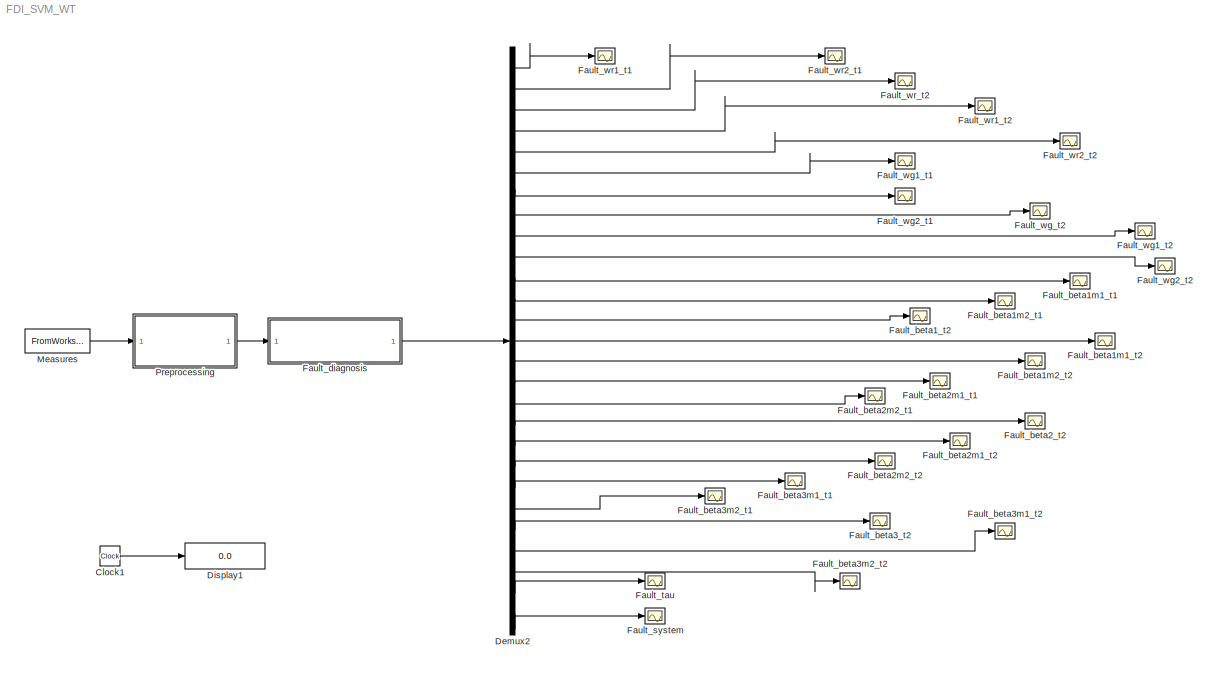
MODEL FDI_SVM_WT
KIND model
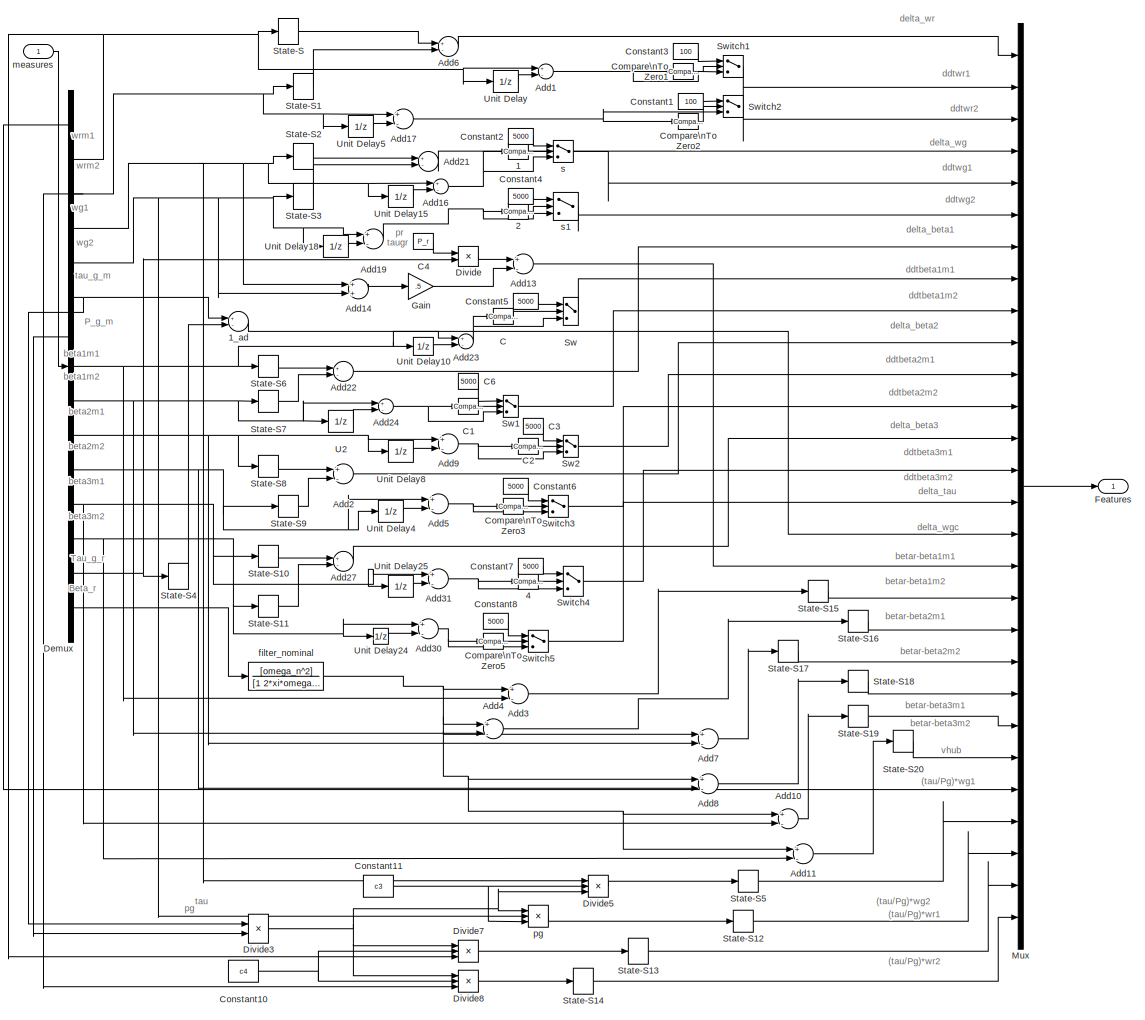
[diagram:  Preprocessing - part 1/1, most of the canvas]
BLOCK [SubSystem]  Preprocessing
  Ports = [1, 1]
  RequestExecContextInheritance = off
  SID = 1
BLOCK [Reference]  Preprocessing/1  REF=simulink/Logic and Bit\nOperations/Compare\nTo Zero
  OutDataTypeStr = uint8
  Ports = [1, 1]
  SID = 3
  SourceBlock = simulink/Logic and Bit\nOperations/Compare\nTo Zero
  SourceProductBaseCode = SL
  SourceProductName = Simulink
  SourceType = Compare To Zero
  ZeroCross = on
  relop = ==
BLOCK [Sum]  Preprocessing/1_ad
  InputSameDT = off
  Inputs = +-
  Ports = [2, 1]
  SID = 4
  SaturateOnIntegerOverflow = off
BLOCK [Reference]  Preprocessing/2  REF=simulink/Logic and Bit\nOperations/Compare\nTo Zero
  OutDataTypeStr = uint8
  Ports = [1, 1]
  SID = 5
  SourceBlock = simulink/Logic and Bit\nOperations/Compare\nTo Zero
  SourceProductBaseCode = SL
  SourceProductName = Simulink
  SourceType = Compare To Zero
  ZeroCross = on
  relop = ==
BLOCK [Reference]  Preprocessing/4  REF=simulink/Logic and Bit\nOperations/Compare\nTo Zero
  OutDataTypeStr = uint8
  Ports = [1, 1]
  SID = 6
  SourceBlock = simulink/Logic and Bit\nOperations/Compare\nTo Zero
  SourceProductBaseCode = SL
  SourceProductName = Simulink
  SourceType = Compare To Zero
  ZeroCross = on
  relop = ==
BLOCK [Sum]  Preprocessing/Add1
  InputSameDT = off
  Inputs = +-
  Ports = [2, 1]
  SID = 7
  SaturateOnIntegerOverflow = off
BLOCK [Sum]  Preprocessing/Add10
  InputSameDT = off
  Inputs = +-
  Ports = [2, 1]
  SID = 8
  SaturateOnIntegerOverflow = off
BLOCK [Sum]  Preprocessing/Add11
  InputSameDT = off
  Inputs = +-
  Ports = [2, 1]
  SID = 9
  SaturateOnIntegerOverflow = off
BLOCK [Sum]  Preprocessing/Add13
  InputSameDT = off
  Inputs = +-
  Ports = [2, 1]
  SID = 10
  SaturateOnIntegerOverflow = off
BLOCK [Sum]  Preprocessing/Add14
  InputSameDT = off
  Ports = [2, 1]
  SID = 11
  SaturateOnIntegerOverflow = off
BLOCK [Sum]  Preprocessing/Add16
  InputSameDT = off
  Inputs = +-
  Ports = [2, 1]
  SID = 12
  SaturateOnIntegerOverflow = off
BLOCK [Sum]  Preprocessing/Add17
  InputSameDT = off
  Inputs = +-
  Ports = [2, 1]
  SID = 13
  SaturateOnIntegerOverflow = off
BLOCK [Sum]  Preprocessing/Add19
  InputSameDT = off
  Inputs = +-
  Ports = [2, 1]
  SID = 14
  SaturateOnIntegerOverflow = off
BLOCK [Sum]  Preprocessing/Add2
  InputSameDT = off
  Inputs = +-
  Ports = [2, 1]
  SID = 15
  SaturateOnIntegerOverflow = off
BLOCK [Sum]  Preprocessing/Add21
  InputSameDT = off
  Inputs = +-
  Ports = [2, 1]
  SID = 16
  SaturateOnIntegerOverflow = off
BLOCK [Sum]  Preprocessing/Add22
  InputSameDT = off
  Inputs = +-
  Ports = [2, 1]
  SID = 17
  SaturateOnIntegerOverflow = off
BLOCK [Sum]  Preprocessing/Add23
  InputSameDT = off
  Inputs = +-
  Ports = [2, 1]
  SID = 18
  SaturateOnIntegerOverflow = off
BLOCK [Sum]  Preprocessing/Add24
  InputSameDT = off
  Inputs = +-
  Ports = [2, 1]
  SID = 19
  SaturateOnIntegerOverflow = off
BLOCK [Sum]  Preprocessing/Add27
  InputSameDT = off
  Inputs = +-
  Ports = [2, 1]
  SID = 20
  SaturateOnIntegerOverflow = off
BLOCK [Sum]  Preprocessing/Add3
  InputSameDT = off
  Inputs = +-
  Ports = [2, 1]
  SID = 21
  SaturateOnIntegerOverflow = off
BLOCK [Sum]  Preprocessing/Add30
  InputSameDT = off
  Inputs = +-
  Ports = [2, 1]
  SID = 22
  SaturateOnIntegerOverflow = off
BLOCK [Sum]  Preprocessing/Add31
  InputSameDT = off
  Inputs = +-
  Ports = [2, 1]
  SID = 23
  SaturateOnIntegerOverflow = off
BLOCK [Sum]  Preprocessing/Add4
  InputSameDT = off
  Inputs = +-
  Ports = [2, 1]
  SID = 24
  SaturateOnIntegerOverflow = off
BLOCK [Sum]  Preprocessing/Add5
  InputSameDT = off
  Inputs = +-
  Ports = [2, 1]
  SID = 25
  SaturateOnIntegerOverflow = off
BLOCK [Sum]  Preprocessing/Add6
  InputSameDT = off
  Inputs = +-
  Ports = [2, 1]
  SID = 26
  SaturateOnIntegerOverflow = off
BLOCK [Sum]  Preprocessing/Add7
  InputSameDT = off
  Inputs = +-
  Ports = [2, 1]
  SID = 27
  SaturateOnIntegerOverflow = off
BLOCK [Sum]  Preprocessing/Add8
  InputSameDT = off
  Inputs = +-
  Ports = [2, 1]
  SID = 28
  SaturateOnIntegerOverflow = off
BLOCK [Sum]  Preprocessing/Add9
  InputSameDT = off
  Inputs = +-
  Ports = [2, 1]
  SID = 29
  SaturateOnIntegerOverflow = off
BLOCK [Reference]  Preprocessing/C  REF=simulink/Logic and Bit\nOperations/Compare\nTo Zero
  OutDataTypeStr = uint8
  Ports = [1, 1]
  SID = 30
  SourceBlock = simulink/Logic and Bit\nOperations/Compare\nTo Zero
  SourceProductBaseCode = SL
  SourceProductName = Simulink
  SourceType = Compare To Zero
  ZeroCross = on
  relop = ==
BLOCK [Reference]  Preprocessing/C1  REF=simulink/Logic and Bit\nOperations/Compare\nTo Zero
  OutDataTypeStr = uint8
  Ports = [1, 1]
  SID = 31
  SourceBlock = simulink/Logic and Bit\nOperations/Compare\nTo Zero
  SourceProductBaseCode = SL
  SourceProductName = Simulink
  SourceType = Compare To Zero
  ZeroCross = on
  relop = ==
BLOCK [Reference]  Preprocessing/C2  REF=simulink/Logic and Bit\nOperations/Compare\nTo Zero
  OutDataTypeStr = uint8
  Ports = [1, 1]
  SID = 32
  SourceBlock = simulink/Logic and Bit\nOperations/Compare\nTo Zero
  SourceProductBaseCode = SL
  SourceProductName = Simulink
  SourceType = Compare To Zero
  ZeroCross = on
  relop = ==
BLOCK [Constant]  Preprocessing/C3
  SID = 33
  Value = 5000
BLOCK [Constant]  Preprocessing/C4
  SID = 34
  Value = P_r
BLOCK [Constant]  Preprocessing/C6
  SID = 35
  Value = 5000
BLOCK [Reference]  Preprocessing/Compare\nTo Zero1  REF=simulink/Logic and Bit\nOperations/Compare\nTo Zero
  OutDataTypeStr = uint8
  Ports = [1, 1]
  SID = 36
  SourceBlock = simulink/Logic and Bit\nOperations/Compare\nTo Zero
  SourceProductBaseCode = SL
  SourceProductName = Simulink
  SourceType = Compare To Zero
  ZeroCross = on
  relop = ==
BLOCK [Reference]  Preprocessing/Compare\nTo Zero2  REF=simulink/Logic and Bit\nOperations/Compare\nTo Zero
  OutDataTypeStr = uint8
  Ports = [1, 1]
  SID = 37
  SourceBlock = simulink/Logic and Bit\nOperations/Compare\nTo Zero
  SourceProductBaseCode = SL
  SourceProductName = Simulink
  SourceType = Compare To Zero
  ZeroCross = on
  relop = ==
BLOCK [Reference]  Preprocessing/Compare\nTo Zero3  REF=simulink/Logic and Bit\nOperations/Compare\nTo Zero
  OutDataTypeStr = uint8
  Ports = [1, 1]
  SID = 38
  SourceBlock = simulink/Logic and Bit\nOperations/Compare\nTo Zero
  SourceProductBaseCode = SL
  SourceProductName = Simulink
  SourceType = Compare To Zero
  ZeroCross = on
  relop = ==
BLOCK [Reference]  Preprocessing/Compare\nTo Zero5  REF=simulink/Logic and Bit\nOperations/Compare\nTo Zero
  OutDataTypeStr = uint8
  Ports = [1, 1]
  SID = 39
  SourceBlock = simulink/Logic and Bit\nOperations/Compare\nTo Zero
  SourceProductBaseCode = SL
  SourceProductName = Simulink
  SourceType = Compare To Zero
  ZeroCross = on
  relop = ==
BLOCK [Constant]  Preprocessing/Constant1
  SID = 40
  Value = 100
BLOCK [Constant]  Preprocessing/Constant10
  SID = 41
  Value = c4
BLOCK [Constant]  Preprocessing/Constant11
  SID = 42
  Value = c3
BLOCK [Constant]  Preprocessing/Constant2
  SID = 43
  Value = 5000
BLOCK [Constant]  Preprocessing/Constant3
  SID = 44
  Value = 100
BLOCK [Constant]  Preprocessing/Constant4
  SID = 45
  Value = 5000
BLOCK [Constant]  Preprocessing/Constant5
  SID = 46
  Value = 5000
BLOCK [Constant]  Preprocessing/Constant6
  SID = 47
  Value = 5000
BLOCK [Constant]  Preprocessing/Constant7
  SID = 48
  Value = 5000
BLOCK [Constant]  Preprocessing/Constant8
  SID = 49
  Value = 5000
BLOCK [Demux]  Preprocessing/Demux
  DisplayOption = bar
  Outputs = 15
  Ports = [1, 15]
  SID = 50
BLOCK [Product]  Preprocessing/Divide
  InputSameDT = off
  Inputs = */
  Ports = [2, 1]
  RndMeth = Floor
  SID = 51
  SaturateOnIntegerOverflow = off
BLOCK [Product]  Preprocessing/Divide3
  InputSameDT = off
  Inputs = */
  Ports = [2, 1]
  RndMeth = Floor
  SID = 52
  SaturateOnIntegerOverflow = off
BLOCK [Product]  Preprocessing/Divide5
  InputSameDT = off
  Inputs = ***
  Ports = [3, 1]
  RndMeth = Floor
  SID = 53
  SaturateOnIntegerOverflow = off
BLOCK [Product]  Preprocessing/Divide7
  InputSameDT = off
  Inputs = ***
  Ports = [3, 1]
  RndMeth = Floor
  SID = 54
  SaturateOnIntegerOverflow = off
BLOCK [Product]  Preprocessing/Divide8
  InputSameDT = off
  Inputs = ***
  Ports = [3, 1]
  RndMeth = Floor
  SID = 55
  SaturateOnIntegerOverflow = off
BLOCK [Outport]  Preprocessing/Features
  IconDisplay = Port number
  SID = 101
BLOCK [Gain]  Preprocessing/Gain
  Gain = .5
  SID = 56
  SaturateOnIntegerOverflow = off
BLOCK [Mux]  Preprocessing/Mux
  DisplayOption = bar
  Inputs = 28
  Ports = [28, 1]
  SID = 57
BLOCK [StateSpace]  Preprocessing/State-S
  A = -1/T1
  B = 1/T1
  D = 0
  InitialCondition = wr0
  Ports = [1, 1]
  SID = 58
BLOCK [StateSpace]  Preprocessing/State-S1
  A = -1/T1
  B = 1/T1
  D = 0
  InitialCondition = wr0
  Ports = [1, 1]
  SID = 59
BLOCK [StateSpace]  Preprocessing/State-S10
  A = -1/T3
  B = 1/T3
  D = 0
  InitialCondition = 0
  Ports = [1, 1]
  SID = 60
BLOCK [StateSpace]  Preprocessing/State-S11
  A = -1/T3
  B = 1/T3
  D = 0
  InitialCondition = 0
  Ports = [1, 1]
  SID = 61
BLOCK [StateSpace]  Preprocessing/State-S12
  A = -1/T3
  B = 1/T3
  D = 0
  InitialCondition = 0
  Ports = [1, 1]
  SID = 62
BLOCK [StateSpace]  Preprocessing/State-S13
  A = -1/T1
  B = 1/T1
  D = 0
  InitialCondition = 0
  Ports = [1, 1]
  SID = 63
BLOCK [StateSpace]  Preprocessing/State-S14
  A = -1/T1
  B = 1/T1
  D = 0
  InitialCondition = 0
  Ports = [1, 1]
  SID = 64
BLOCK [StateSpace]  Preprocessing/State-S15
  A = -1/T4
  B = 1/T4
  D = 0
  InitialCondition = 0
  Ports = [1, 1]
  SID = 65
BLOCK [StateSpace]  Preprocessing/State-S16
  A = -1/T4
  B = 1/T4
  D = 0
  InitialCondition = 0
  Ports = [1, 1]
  SID = 66
BLOCK [StateSpace]  Preprocessing/State-S17
  A = -1/T4
  B = 1/T4
  D = 0
  InitialCondition = 0
  Ports = [1, 1]
  SID = 67
BLOCK [StateSpace]  Preprocessing/State-S18
  A = -1/T4
  B = 1/T4
  D = 0
  InitialCondition = 0
  Ports = [1, 1]
  SID = 68
BLOCK [StateSpace]  Preprocessing/State-S19
  A = -1/T4
  B = 1/T4
  D = 0
  InitialCondition = 0
  Ports = [1, 1]
  SID = 69
BLOCK [StateSpace]  Preprocessing/State-S2
  A = -1/T2
  B = 1/T2
  D = 0
  InitialCondition = wg0
  Ports = [1, 1]
  SID = 70
BLOCK [StateSpace]  Preprocessing/State-S20
  A = -1/T4
  B = 1/T4
  D = 0
  InitialCondition = 0
  Ports = [1, 1]
  SID = 71
BLOCK [StateSpace]  Preprocessing/State-S3
  A = -1/T2
  B = 1/T2
  D = 0
  InitialCondition = wg0
  Ports = [1, 1]
  SID = 72
BLOCK [StateSpace]  Preprocessing/State-S4
  A = -1/T2
  B = 1/T2
  D = 0
  InitialCondition = 0
  Ports = [1, 1]
  SID = 73
BLOCK [StateSpace]  Preprocessing/State-S5
  A = -1/T3
  B = 1/T3
  D = 0
  InitialCondition = 0
  Ports = [1, 1]
  SID = 74
BLOCK [StateSpace]  Preprocessing/State-S6
  A = -1/T3
  B = 1/T3
  D = 0
  InitialCondition = 0
  Ports = [1, 1]
  SID = 75
BLOCK [StateSpace]  Preprocessing/State-S7
  A = -1/T3
  B = 1/T3
  D = 0
  InitialCondition = 0
  Ports = [1, 1]
  SID = 76
BLOCK [StateSpace]  Preprocessing/State-S8
  A = -1/T3
  B = 1/T3
  D = 0
  InitialCondition = 0
  Ports = [1, 1]
  SID = 77
BLOCK [StateSpace]  Preprocessing/State-S9
  A = -1/T3
  B = 1/T3
  D = 0
  InitialCondition = 0
  Ports = [1, 1]
  SID = 78
BLOCK [Switch]  Preprocessing/Sw
  InputSameDT = off
  SID = 79
  SaturateOnIntegerOverflow = off
  Threshold = 0.5
BLOCK [Switch]  Preprocessing/Sw1
  InputSameDT = off
  SID = 80
  SaturateOnIntegerOverflow = off
  Threshold = 0.5
BLOCK [Switch]  Preprocessing/Sw2
  InputSameDT = off
  SID = 81
  SaturateOnIntegerOverflow = off
  Threshold = 0.5
BLOCK [Switch]  Preprocessing/Switch1
  InputSameDT = off
  SID = 82
  SaturateOnIntegerOverflow = off
  Threshold = 0.5
BLOCK [Switch]  Preprocessing/Switch2
  InputSameDT = off
  SID = 83
  SaturateOnIntegerOverflow = off
  Threshold = 0.5
BLOCK [Switch]  Preprocessing/Switch3
  InputSameDT = off
  SID = 84
  SaturateOnIntegerOverflow = off
  Threshold = 0.5
BLOCK [Switch]  Preprocessing/Switch4
  InputSameDT = off
  SID = 85
  SaturateOnIntegerOverflow = off
  Threshold = 0.5
BLOCK [Switch]  Preprocessing/Switch5
  InputSameDT = off
  SID = 86
  SaturateOnIntegerOverflow = off
  Threshold = 0.5
BLOCK [UnitDelay]  Preprocessing/U2
  HasFrameUpgradeWarning = on
  SID = 87
  SampleTime = Ts
BLOCK [UnitDelay]  Preprocessing/Unit Delay
  HasFrameUpgradeWarning = on
  SID = 88
  SampleTime = Ts
BLOCK [UnitDelay]  Preprocessing/Unit Delay10
  HasFrameUpgradeWarning = on
  SID = 89
  SampleTime = Ts
BLOCK [UnitDelay]  Preprocessing/Unit Delay15
  HasFrameUpgradeWarning = on
  InitialCondition = 100
  SID = 90
  SampleTime = Ts
BLOCK [UnitDelay]  Preprocessing/Unit Delay18
  HasFrameUpgradeWarning = on
  InitialCondition = 100
  SID = 91
  SampleTime = Ts
BLOCK [UnitDelay]  Preprocessing/Unit Delay24
  HasFrameUpgradeWarning = on
  SID = 92
  SampleTime = Ts
BLOCK [UnitDelay]  Preprocessing/Unit Delay25
  HasFrameUpgradeWarning = on
  SID = 93
  SampleTime = Ts
BLOCK [UnitDelay]  Preprocessing/Unit Delay4
  HasFrameUpgradeWarning = on
  SID = 94
  SampleTime = Ts
BLOCK [UnitDelay]  Preprocessing/Unit Delay5
  HasFrameUpgradeWarning = on
  SID = 95
  SampleTime = Ts
BLOCK [UnitDelay]  Preprocessing/Unit Delay8
  HasFrameUpgradeWarning = on
  SID = 96
  SampleTime = Ts
BLOCK [TransferFcn]  Preprocessing/filter_nominal
  Denominator = [1 2*xi*omega_n omega_n^2]
  Numerator = [omega_n^2]
  SID = 97
BLOCK [Inport]  Preprocessing/measures
  IconDisplay = Port number
  SID = 2
BLOCK [Product]  Preprocessing/pg
  InputSameDT = off
  Inputs = ***
  Ports = [3, 1]
  RndMeth = Floor
  SID = 98
  SaturateOnIntegerOverflow = off
BLOCK [Switch]  Preprocessing/s
  InputSameDT = off
  SID = 99
  SaturateOnIntegerOverflow = off
  Threshold = 0.5
BLOCK [Switch]  Preprocessing/s1
  InputSameDT = off
  SID = 100
  SaturateOnIntegerOverflow = off
  Threshold = 0.5
BLOCK [Clock] Clock1
  SID = 102
BLOCK [Demux] Demux2
  DisplayOption = bar
  Outputs = 27
  Ports = [1, 27]
  SID = 103
BLOCK [Display] Display1
  Decimation = 1
  Ports = [1]
  SID = 104
BLOCK [Scope] Fault_beta1_t2
  Floating = off
  NumInputPorts = 1
  Ports = [1]
  SID = 105
  ScopeSpecificationString = C++SS(StrPVP('Location','[159, 184, 483, 423]'),StrPVP('Open','off'),StrPVP('ZoomMode','xonly'),MxPVP('AxesTitles',54,'struct(''axes1'',''%<SignalLabel>'')'),MxPVP('ScopeGraphics',57,'struct(''FigureColor'',''[0.5 0.5 0.5]'',''AxesColor'',''[0 0 0]'',''AxesTickColor'',''[1 1 1]'',''LineColors'',''[1 1 0;1 0 1;0 1 1;1 0 0;0 1 0;0 0 1]'',''LineStyles'',''-|-|-|-|-|-'',''LineWidths'',''[0.5 0.5 0.5 0...<+311ch>
BLOCK [Scope] Fault_beta1m1_t1
  Floating = off
  NumInputPorts = 1
  Ports = [1]
  SID = 106
  ScopeSpecificationString = C++SS(StrPVP('Location','[280, 222, 604, 461]'),StrPVP('Open','off'),StrPVP('ZoomMode','xonly'),MxPVP('AxesTitles',54,'struct(''axes1'',''%<SignalLabel>'')'),MxPVP('ScopeGraphics',57,'struct(''FigureColor'',''[0.5 0.5 0.5]'',''AxesColor'',''[0 0 0]'',''AxesTickColor'',''[1 1 1]'',''LineColors'',''[1 1 0;1 0 1;0 1 1;1 0 0;0 1 0;0 0 1]'',''LineStyles'',''-|-|-|-|-|-'',''LineWidths'',''[0.5 0.5 0.5 0...<+311ch>
BLOCK [Scope] Fault_beta1m1_t2
  Floating = off
  NumInputPorts = 1
  Ports = [1]
  SID = 107
  ScopeSpecificationString = C++SS(StrPVP('Location','[502, 361, 826, 600]'),StrPVP('Open','off'),MxPVP('AxesTitles',54,'struct(''axes1'',''%<SignalLabel>'')'),MxPVP('ScopeGraphics',57,'struct(''FigureColor'',''[0.5 0.5 0.5]'',''AxesColor'',''[0 0 0]'',''AxesTickColor'',''[1 1 1]'',''LineColors'',''[1 1 0;1 0 1;0 1 1;1 0 0;0 1 0;0 0 1]'',''LineStyles'',''-|-|-|-|-|-'',''LineWidths'',''[0.5 0.5 0.5 0.5 0.5 0.5]'',''MarkerStyle...<+284ch>
BLOCK [Scope] Fault_beta1m2_t1
  Floating = off
  NumInputPorts = 1
  Ports = [1]
  SID = 108
  ScopeSpecificationString = C++SS(StrPVP('Location','[498, 410, 822, 649]'),StrPVP('Open','off'),MxPVP('AxesTitles',54,'struct(''axes1'',''%<SignalLabel>'')'),MxPVP('ScopeGraphics',57,'struct(''FigureColor'',''[0.5 0.5 0.5]'',''AxesColor'',''[0 0 0]'',''AxesTickColor'',''[1 1 1]'',''LineColors'',''[1 1 0;1 0 1;0 1 1;1 0 0;0 1 0;0 0 1]'',''LineStyles'',''-|-|-|-|-|-'',''LineWidths'',''[0.5 0.5 0.5 0.5 0.5 0.5]'',''MarkerStyle...<+284ch>  <repeated x4 — deduplicated; at blocks: Fault_beta1m2_t1, Fault_beta2m2_t1, Fault_beta3m1_t2, Fault_beta3m2_t1>
BLOCK [Scope] Fault_beta1m2_t2
  Floating = off
  NumInputPorts = 1
  Ports = [1]
  SID = 109
  ScopeSpecificationString = C++SS(StrPVP('Location','[502, 361, 826, 600]'),StrPVP('Open','off'),MxPVP('AxesTitles',54,'struct(''axes1'',''%<SignalLabel>'')'),MxPVP('ScopeGraphics',57,'struct(''FigureColor'',''[0.5 0.5 0.5]'',''AxesColor'',''[0 0 0]'',''AxesTickColor'',''[1 1 1]'',''LineColors'',''[1 1 0;1 0 1;0 1 1;1 0 0;0 1 0;0 0 1]'',''LineStyles'',''-|-|-|-|-|-'',''LineWidths'',''[0.5 0.5 0.5 0.5 0.5 0.5]'',''MarkerStyle...<+284ch>
BLOCK [Scope] Fault_beta2_t2
  Floating = off
  NumInputPorts = 1
  Ports = [1]
  SID = 110
  ScopeSpecificationString = C++SS(StrPVP('Location','[5, 52, 1285, 993]'),StrPVP('Open','off'),StrPVP('ZoomMode','xonly'),MxPVP('AxesTitles',54,'struct(''axes1'',''%<SignalLabel>'')'),MxPVP('ScopeGraphics',57,'struct(''FigureColor'',''[0.5 0.5 0.5]'',''AxesColor'',''[0 0 0]'',''AxesTickColor'',''[1 1 1]'',''LineColors'',''[1 1 0;1 0 1;0 1 1;1 0 0;0 1 0;0 0 1]'',''LineStyles'',''-|-|-|-|-|-'',''LineWidths'',''[0.5 0.5 0.5 0.5...<+309ch>
BLOCK [Scope] Fault_beta2m1_t1
  Floating = off
  NumInputPorts = 1
  Ports = [1]
  SID = 111
  ScopeSpecificationString = C++SS(StrPVP('Location','[499, 346, 823, 585]'),StrPVP('Open','off'),MxPVP('AxesTitles',54,'struct(''axes1'',''%<SignalLabel>'')'),MxPVP('ScopeGraphics',57,'struct(''FigureColor'',''[0.5 0.5 0.5]'',''AxesColor'',''[0 0 0]'',''AxesTickColor'',''[1 1 1]'',''LineColors'',''[1 1 0;1 0 1;0 1 1;1 0 0;0 1 0;0 0 1]'',''LineStyles'',''-|-|-|-|-|-'',''LineWidths'',''[0.5 0.5 0.5 0.5 0.5 0.5]'',''MarkerStyle...<+284ch>
BLOCK [Scope] Fault_beta2m1_t2
  Floating = off
  NumInputPorts = 1
  Ports = [1]
  SID = 112
  ScopeSpecificationString = C++SS(StrPVP('Location','[513, 264, 837, 503]'),StrPVP('Open','off'),StrPVP('ZoomMode','yonly'),MxPVP('AxesTitles',54,'struct(''axes1'',''%<SignalLabel>'')'),MxPVP('ScopeGraphics',57,'struct(''FigureColor'',''[0.5 0.5 0.5]'',''AxesColor'',''[0 0 0]'',''AxesTickColor'',''[1 1 1]'',''LineColors'',''[1 1 0;1 0 1;0 1 1;1 0 0;0 1 0;0 0 1]'',''LineStyles'',''-|-|-|-|-|-'',''LineWidths'',''[0.5 0.5 0.5 0...<+311ch>
BLOCK [Scope] Fault_beta2m2_t1
  Floating = off
  NumInputPorts = 1
  Ports = [1]
  SID = 113
BLOCK [Scope] Fault_beta2m2_t2
  Floating = off
  NumInputPorts = 1
  Ports = [1]
  SID = 114
  ScopeSpecificationString = C++SS(StrPVP('Location','[195, 145, 519, 388]'),StrPVP('Open','off'),StrPVP('ZoomMode','yonly'),MxPVP('AxesTitles',54,'struct(''axes1'',''%<SignalLabel>'')'),MxPVP('ScopeGraphics',57,'struct(''FigureColor'',''[0.5 0.5 0.5]'',''AxesColor'',''[0 0 0]'',''AxesTickColor'',''[1 1 1]'',''LineColors'',''[1 1 0;1 0 1;0 1 1;1 0 0;0 1 0;0 0 1]'',''LineStyles'',''-|-|-|-|-|-'',''LineWidths'',''[0.5 0.5 0.5 0...<+311ch>
BLOCK [Scope] Fault_beta3_t2
  Floating = off
  NumInputPorts = 1
  Ports = [1]
  SID = 115
  ScopeSpecificationString = C++SS(StrPVP('Location','[391, 277, 715, 516]'),StrPVP('Open','off'),StrPVP('ZoomMode','yonly'),MxPVP('AxesTitles',54,'struct(''axes1'',''%<SignalLabel>'')'),MxPVP('ScopeGraphics',57,'struct(''FigureColor'',''[0.5 0.5 0.5]'',''AxesColor'',''[0 0 0]'',''AxesTickColor'',''[1 1 1]'',''LineColors'',''[1 1 0;1 0 1;0 1 1;1 0 0;0 1 0;0 0 1]'',''LineStyles'',''-|-|-|-|-|-'',''LineWidths'',''[0.5 0.5 0.5 0...<+311ch>
BLOCK [Scope] Fault_beta3m1_t1
  Floating = off
  NumInputPorts = 1
  Ports = [1]
  SID = 116
  ScopeSpecificationString = C++SS(StrPVP('Location','[250, 151, 574, 390]'),StrPVP('Open','off'),StrPVP('ZoomMode','xonly'),MxPVP('AxesTitles',54,'struct(''axes1'',''%<SignalLabel>'')'),MxPVP('ScopeGraphics',57,'struct(''FigureColor'',''[0.5 0.5 0.5]'',''AxesColor'',''[0 0 0]'',''AxesTickColor'',''[1 1 1]'',''LineColors'',''[1 1 0;1 0 1;0 1 1;1 0 0;0 1 0;0 0 1]'',''LineStyles'',''-|-|-|-|-|-'',''LineWidths'',''[0.5 0.5 0.5 0...<+319ch>
BLOCK [Scope] Fault_beta3m1_t2
  Floating = off
  NumInputPorts = 1
  Ports = [1]
  SID = 117
BLOCK [Scope] Fault_beta3m2_t1
  Floating = off
  NumInputPorts = 1
  Ports = [1]
  SID = 118
BLOCK [Scope] Fault_beta3m2_t2
  Floating = off
  NumInputPorts = 1
  Ports = [1]
  SID = 119
  ScopeSpecificationString = C++SS(StrPVP('Location','[498, 410, 822, 649]'),StrPVP('Open','off'),StrPVP('ZoomMode','xonly'),MxPVP('AxesTitles',54,'struct(''axes1'',''%<SignalLabel>'')'),MxPVP('ScopeGraphics',57,'struct(''FigureColor'',''[0.5 0.5 0.5]'',''AxesColor'',''[0 0 0]'',''AxesTickColor'',''[1 1 1]'',''LineColors'',''[1 1 0;1 0 1;0 1 1;1 0 0;0 1 0;0 0 1]'',''LineStyles'',''-|-|-|-|-|-'',''LineWidths'',''[0.5 0.5 0.5 0...<+311ch>
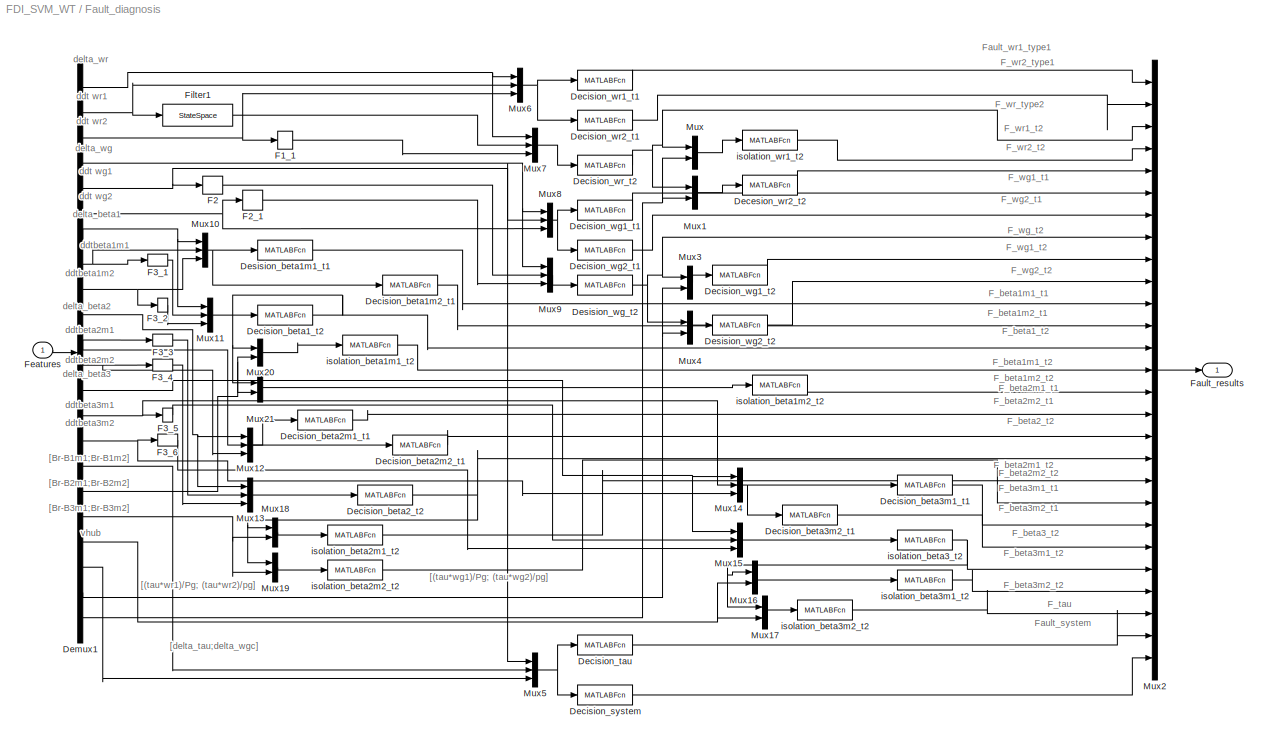
BLOCK [SubSystem] Fault_diagnosis
  Ports = [1, 1]
  RequestExecContextInheritance = off
  SID = 120
BLOCK [MATLABFcn] Fault_diagnosis/Decesion_wr2_t2
  MATLABFcn = Fault_decision_wr2_t2
  Output1D = off
  OutputDimensions = 1
  Ports = [1, 1]
  SID = 157
  SampleTime = Ts
BLOCK [MATLABFcn] Fault_diagnosis/Decision_beta1_t2
  MATLABFcn = Fault_decision_b2_t2
  Output1D = off
  OutputDimensions = 1
  Ports = [1, 1]
  SID = 160
  SampleTime = Ts
BLOCK [MATLABFcn] Fault_diagnosis/Decision_beta1m2_t1
  MATLABFcn = Fault_decision_b1m2_t1
  Output1D = off
  OutputDimensions = 1
  Ports = [1, 1]
  SID = 177
  SampleTime = Ts
BLOCK [MATLABFcn] Fault_diagnosis/Decision_beta2_t2
  MATLABFcn = Fault_decision_b2_t2
  OutputDimensions = 1
  Ports = [1, 1]
  SID = 165
  SampleTime = Ts
BLOCK [MATLABFcn] Fault_diagnosis/Decision_beta2m1_t1
  MATLABFcn = Fault_decision_b1m1_t1
  OutputDimensions = 1
  Ports = [1, 1]
  SID = 168
  SampleTime = Ts
BLOCK [MATLABFcn] Fault_diagnosis/Decision_beta2m2_t1
  MATLABFcn = Fault_decision_b1m2_t1
  OutputDimensions = 1
  Ports = [1, 1]
  SID = 163
  SampleTime = Ts
BLOCK [MATLABFcn] Fault_diagnosis/Decision_beta3m1_t1
  MATLABFcn = Fault_decision_b1m1_t1
  OutputDimensions = 1
  Ports = [1, 1]
  SID = 173
  SampleTime = Ts
BLOCK [MATLABFcn] Fault_diagnosis/Decision_beta3m2_t1
  MATLABFcn = Fault_decision_b1m2_t1
  OutputDimensions = 1
  Ports = [1, 1]
  SID = 169
  SampleTime = Ts
BLOCK [MATLABFcn] Fault_diagnosis/Decision_system
  MATLABFcn = Fault_decision_system
  Output1D = off
  OutputDimensions = 1
  Ports = [1, 1]
  SID = 161
  SampleTime = Ts
BLOCK [MATLABFcn] Fault_diagnosis/Decision_tau
  MATLABFcn = Fault_decision_tau
  Output1D = off
  OutputDimensions = 1
  Ports = [1, 1]
  SID = 178
  SampleTime = Ts
BLOCK [MATLABFcn] Fault_diagnosis/Decision_wg1_t1
  MATLABFcn = Fault_decision_wg1_t1
  Output1D = off
  OutputDimensions = 1
  Ports = [1, 1]
  SID = 180
  SampleTime = Ts
BLOCK [MATLABFcn] Fault_diagnosis/Decision_wg1_t2
  MATLABFcn = Fault_decision_wg1_t2
  Output1D = off
  OutputDimensions = 1
  Ports = [1, 1]
  SID = 158
  SampleTime = Ts
BLOCK [MATLABFcn] Fault_diagnosis/Decision_wg2_t1
  MATLABFcn = Fault_decision_wg2_t1
  OutputDimensions = 1
  Ports = [1, 1]
  SID = 176
  SampleTime = Ts
BLOCK [MATLABFcn] Fault_diagnosis/Decision_wr1_t1
  MATLABFcn = Fault_decision_wr1_t1
  OutputDimensions = 1
  Ports = [1, 1]
  SID = 122
  SampleTime = Ts
BLOCK [MATLABFcn] Fault_diagnosis/Decision_wr2_t1
  MATLABFcn = Fault_decision_wr2_t1
  OutputDimensions = 1
  Ports = [1, 1]
  SID = 156
  SampleTime = Ts
BLOCK [MATLABFcn] Fault_diagnosis/Decision_wr_t2
  MATLABFcn = Fault_decision_wr_t2
  Output1D = off
  OutputDimensions = 1
  Ports = [1, 1]
  SID = 167
  SampleTime = Ts
BLOCK [Demux] Fault_diagnosis/Demux1
  DisplayOption = bar
  Outputs = [1 1 1 1 1 1  1 1 1 1 1 1 1 1 1 2 2 2 2 1 2 2]
  Ports = [1, 22]
  SID = 123
BLOCK [MATLABFcn] Fault_diagnosis/Desision_beta1m1_t1
  MATLABFcn = Fault_decision_b1m1_t1
  Output1D = off
  OutputDimensions = 1
  Ports = [1, 1]
  SID = 162
  SampleTime = Ts
BLOCK [MATLABFcn] Fault_diagnosis/Desision_wg2_t2
  MATLABFcn = Fault_decision_wg2_t2
  Output1D = off
  OutputDimensions = 1
  Ports = [1, 1]
  SID = 159
  SampleTime = Ts
BLOCK [MATLABFcn] Fault_diagnosis/Desision_wg_t2
  MATLABFcn = Fault_decision_wg_t2
  OutputDimensions = 1
  Ports = [1, 1]
  SID = 179
  SampleTime = Ts
BLOCK [StateSpace] Fault_diagnosis/F1_1
  A = -1/T1
  B = 1/T1
  D = 0
  InitialCondition = wr0
  Ports = [1, 1]
  SID = 124
BLOCK [StateSpace] Fault_diagnosis/F2
  A = -1/T2
  B = 1/T2
  D = 0
  InitialCondition = wg0
  Ports = [1, 1]
  SID = 125
BLOCK [StateSpace] Fault_diagnosis/F2_1
  A = -1/T2
  B = 1/T2
  D = 0
  InitialCondition = wg0
  Ports = [1, 1]
  SID = 126
BLOCK [StateSpace] Fault_diagnosis/F3_1
  A = -1/T3
  B = 1/T3
  D = 0
  InitialCondition = 0
  Ports = [1, 1]
  SID = 127
BLOCK [StateSpace] Fault_diagnosis/F3_2
  A = -1/T3
  B = 1/T3
  D = 0
  InitialCondition = 0
  Ports = [1, 1]
  SID = 128
BLOCK [StateSpace] Fault_diagnosis/F3_3
  A = -1/T3
  B = 1/T3
  D = 0
  InitialCondition = 0
  Ports = [1, 1]
  SID = 129
BLOCK [StateSpace] Fault_diagnosis/F3_4
  A = -1/T3
  B = 1/T3
  D = 0
  InitialCondition = 0
  Ports = [1, 1]
  SID = 130
BLOCK [StateSpace] Fault_diagnosis/F3_5
  A = -1/T3
  B = 1/T3
  D = 0
  InitialCondition = 0
  Ports = [1, 1]
  SID = 131
BLOCK [StateSpace] Fault_diagnosis/F3_6
  A = -1/T3
  B = 1/T3
  D = 0
  InitialCondition = 0
  Ports = [1, 1]
  SID = 132
BLOCK [Outport] Fault_diagnosis/Fault_results
  IconDisplay = Port number
  SID = 182
BLOCK [Inport] Fault_diagnosis/Features
  IconDisplay = Port number
  SID = 121
BLOCK [StateSpace] Fault_diagnosis/Filter1
  A = -1/T1
  B = 1/T1
  D = 0
  InitialCondition = wr0
  Ports = [1, 1]
  SID = 133
BLOCK [Mux] Fault_diagnosis/Mux
  DisplayOption = bar
  Inputs = 2
  Ports = [2, 1]
  SID = 134
BLOCK [Mux] Fault_diagnosis/Mux1
  DisplayOption = bar
  Inputs = 2
  Ports = [2, 1]
  SID = 135
BLOCK [Mux] Fault_diagnosis/Mux10
  DisplayOption = bar
  Inputs = 3
  Ports = [3, 1]
  SID = 136
BLOCK [Mux] Fault_diagnosis/Mux11
  DisplayOption = bar
  Inputs = 3
  Ports = [3, 1]
  SID = 137
BLOCK [Mux] Fault_diagnosis/Mux12
  DisplayOption = bar
  Inputs = 3
  Ports = [3, 1]
  SID = 138
BLOCK [Mux] Fault_diagnosis/Mux13
  DisplayOption = bar
  Inputs = 3
  Ports = [3, 1]
  SID = 139
BLOCK [Mux] Fault_diagnosis/Mux14
  DisplayOption = bar
  Inputs = 3
  Ports = [3, 1]
  SID = 140
BLOCK [Mux] Fault_diagnosis/Mux15
  DisplayOption = bar
  Inputs = 3
  Ports = [3, 1]
  SID = 141
BLOCK [Mux] Fault_diagnosis/Mux16
  DisplayOption = bar
  Inputs = 2
  Ports = [2, 1]
  SID = 142
BLOCK [Mux] Fault_diagnosis/Mux17
  DisplayOption = bar
  Inputs = 2
  Ports = [2, 1]
  SID = 143
BLOCK [Mux] Fault_diagnosis/Mux18
  DisplayOption = bar
  Inputs = 2
  Ports = [2, 1]
  SID = 144
BLOCK [Mux] Fault_diagnosis/Mux19
  DisplayOption = bar
  Inputs = 2
  Ports = [2, 1]
  SID = 145
BLOCK [Mux] Fault_diagnosis/Mux2
  DisplayOption = bar
  Inputs = 27
  Ports = [27, 1]
  SID = 146
BLOCK [Mux] Fault_diagnosis/Mux20
  DisplayOption = bar
  Inputs = 2
  Ports = [2, 1]
  SID = 147
BLOCK [Mux] Fault_diagnosis/Mux21
  DisplayOption = bar
  Inputs = 2
  Ports = [2, 1]
  SID = 148
BLOCK [Mux] Fault_diagnosis/Mux3
  DisplayOption = bar
  Inputs = 2
  Ports = [2, 1]
  SID = 149
BLOCK [Mux] Fault_diagnosis/Mux4
  DisplayOption = bar
  Inputs = 2
  Ports = [2, 1]
  SID = 150
BLOCK [Mux] Fault_diagnosis/Mux5
  DisplayOption = bar
  Inputs = 3
  Ports = [3, 1]
  SID = 151
BLOCK [Mux] Fault_diagnosis/Mux6
  DisplayOption = bar
  Inputs = 3
  Ports = [3, 1]
  SID = 152
BLOCK [Mux] Fault_diagnosis/Mux7
  DisplayOption = bar
  Inputs = 3
  Ports = [3, 1]
  SID = 153
BLOCK [Mux] Fault_diagnosis/Mux8
  DisplayOption = bar
  Inputs = 3
  Ports = [3, 1]
  SID = 154
BLOCK [Mux] Fault_diagnosis/Mux9
  DisplayOption = bar
  Inputs = 3
  Ports = [3, 1]
  SID = 155
BLOCK [MATLABFcn] Fault_diagnosis/isolation_beta1m1_t2
  MATLABFcn = Fault_decision_b2m1_t2
  Output1D = off
  OutputDimensions = 1
  Ports = [1, 1]
  SID = 174
  SampleTime = Ts
BLOCK [MATLABFcn] Fault_diagnosis/isolation_beta1m2_t2
  MATLABFcn = Fault_decision_b2m2_t2
  Output1D = off
  OutputDimensions = 1
  Ports = [1, 1]
  SID = 175
  SampleTime = Ts
BLOCK [MATLABFcn] Fault_diagnosis/isolation_beta2m1_t2
  MATLABFcn = Fault_decision_b2m1_t2
  Output1D = off
  OutputDimensions = 1
  Ports = [1, 1]
  SID = 170
  SampleTime = Ts
BLOCK [MATLABFcn] Fault_diagnosis/isolation_beta2m2_t2
  MATLABFcn = Fault_decision_b2m2_t2
  Output1D = off
  OutputDimensions = 1
  Ports = [1, 1]
  SID = 172
  SampleTime = Ts
BLOCK [MATLABFcn] Fault_diagnosis/isolation_beta3_t2
  MATLABFcn = Fault_decision_b2_t2
  OutputDimensions = 1
  Ports = [1, 1]
  SID = 171
  SampleTime = Ts
BLOCK [MATLABFcn] Fault_diagnosis/isolation_beta3m1_t2
  MATLABFcn = Fault_decision_b2m1_t2
  Output1D = off
  OutputDimensions = 1
  Ports = [1, 1]
  SID = 164
  SampleTime = Ts
BLOCK [MATLABFcn] Fault_diagnosis/isolation_beta3m2_t2
  MATLABFcn = Fault_decision_b2m2_t2
  Output1D = off
  OutputDimensions = 1
  Ports = [1, 1]
  SID = 166
  SampleTime = Ts
BLOCK [MATLABFcn] Fault_diagnosis/isolation_wr1_t2
  MATLABFcn = Fault_decision_wr1_t2
  Output1D = off
  OutputDimensions = 1
  Ports = [1, 1]
  SID = 181
  SampleTime = Ts
BLOCK [Scope] Fault_system
  Floating = off
  NumInputPorts = 1
  Ports = [1]
  SID = 183
  ScopeSpecificationString = C++SS(StrPVP('Location','[5, 52, 1285, 993]'),StrPVP('Open','off'),StrPVP('ZoomMode','xonly'),MxPVP('AxesTitles',54,'struct(''axes1'',''%<SignalLabel>'')'),MxPVP('ScopeGraphics',57,'struct(''FigureColor'',''[0.5 0.5 0.5]'',''AxesColor'',''[0 0 0]'',''AxesTickColor'',''[1 1 1]'',''LineColors'',''[1 1 0;1 0 1;0 1 1;1 0 0;0 1 0;0 0 1]'',''LineStyles'',''-|-|-|-|-|-'',''LineWidths'',''[0.5 0.5 0.5 0.5...<+309ch>
BLOCK [Scope] Fault_tau
  Floating = off
  NumInputPorts = 1
  Ports = [1]
  SID = 184
  ScopeSpecificationString = C++SS(StrPVP('Location','[72, 257, 396, 496]'),StrPVP('Open','off'),StrPVP('ZoomMode','xonly'),MxPVP('AxesTitles',54,'struct(''axes1'',''%<SignalLabel>'')'),MxPVP('ScopeGraphics',57,'struct(''FigureColor'',''[0.5 0.5 0.5]'',''AxesColor'',''[0 0 0]'',''AxesTickColor'',''[1 1 1]'',''LineColors'',''[1 1 0;1 0 1;0 1 1;1 0 0;0 1 0;0 0 1]'',''LineStyles'',''-|-|-|-|-|-'',''LineWidths'',''[0.5 0.5 0.5 0....<+310ch>
BLOCK [Scope] Fault_wg1_t1
  Floating = off
  NumInputPorts = 1
  Ports = [1]
  SID = 185
  ScopeSpecificationString = C++SS(StrPVP('Location','[322, 253, 646, 492]'),StrPVP('Open','off'),StrPVP('ZoomMode','xonly'),MxPVP('AxesTitles',54,'struct(''axes1'',''%<SignalLabel>'')'),MxPVP('ScopeGraphics',57,'struct(''FigureColor'',''[0.5 0.5 0.5]'',''AxesColor'',''[0 0 0]'',''AxesTickColor'',''[1 1 1]'',''LineColors'',''[1 1 0;1 0 1;0 1 1;1 0 0;0 1 0;0 0 1]'',''LineStyles'',''-|-|-|-|-|-'',''LineWidths'',''[0.5 0.5 0.5 0...<+310ch>
BLOCK [Scope] Fault_wg1_t2
  Floating = off
  NumInputPorts = 1
  Ports = [1]
  SID = 186
  ScopeSpecificationString = C++SS(StrPVP('Location','[474, 262, 798, 501]'),StrPVP('Open','off'),StrPVP('ZoomMode','xonly'),MxPVP('AxesTitles',54,'struct(''axes1'',''%<SignalLabel>'')'),MxPVP('ScopeGraphics',57,'struct(''FigureColor'',''[0.5 0.5 0.5]'',''AxesColor'',''[0 0 0]'',''AxesTickColor'',''[1 1 1]'',''LineColors'',''[1 1 0;1 0 1;0 1 1;1 0 0;0 1 0;0 0 1]'',''LineStyles'',''-|-|-|-|-|-'',''LineWidths'',''[0.5 0.5 0.5 0...<+310ch>
BLOCK [Scope] Fault_wg2_t1
  Floating = off
  NumInputPorts = 1
  Ports = [1]
  SID = 187
  ScopeSpecificationString = C++SS(StrPVP('Location','[461, 345, 785, 584]'),StrPVP('Open','off'),MxPVP('AxesTitles',54,'struct(''axes1'',''%<SignalLabel>'')'),MxPVP('ScopeGraphics',57,'struct(''FigureColor'',''[0.5 0.5 0.5]'',''AxesColor'',''[0 0 0]'',''AxesTickColor'',''[1 1 1]'',''LineColors'',''[1 1 0;1 0 1;0 1 1;1 0 0;0 1 0;0 0 1]'',''LineStyles'',''-|-|-|-|-|-'',''LineWidths'',''[0.5 0.5 0.5 0.5 0.5 0.5]'',''MarkerStyle...<+283ch>
BLOCK [Scope] Fault_wg2_t2
  Floating = off
  NumInputPorts = 1
  Ports = [1]
  SID = 188
  ScopeSpecificationString = C++SS(StrPVP('Location','[134, 188, 458, 427]'),StrPVP('Open','off'),StrPVP('ZoomMode','xonly'),MxPVP('AxesTitles',54,'struct(''axes1'',''%<SignalLabel>'')'),MxPVP('ScopeGraphics',57,'struct(''FigureColor'',''[0.5 0.5 0.5]'',''AxesColor'',''[0 0 0]'',''AxesTickColor'',''[1 1 1]'',''LineColors'',''[1 1 0;1 0 1;0 1 1;1 0 0;0 1 0;0 0 1]'',''LineStyles'',''-|-|-|-|-|-'',''LineWidths'',''[0.5 0.5 0.5 0...<+310ch>
BLOCK [Scope] Fault_wg_t2
  Floating = off
  NumInputPorts = 1
  Ports = [1]
  SID = 189
  ScopeSpecificationString = C++SS(StrPVP('Location','[188, 221, 512, 460]'),StrPVP('Open','off'),StrPVP('ZoomMode','xonly'),MxPVP('AxesTitles',54,'struct(''axes1'',''%<SignalLabel>'')'),MxPVP('ScopeGraphics',57,'struct(''FigureColor'',''[0.5 0.5 0.5]'',''AxesColor'',''[0 0 0]'',''AxesTickColor'',''[1 1 1]'',''LineColors'',''[1 1 0;1 0 1;0 1 1;1 0 0;0 1 0;0 0 1]'',''LineStyles'',''-|-|-|-|-|-'',''LineWidths'',''[0.5 0.5 0.5 0...<+310ch>
BLOCK [Scope] Fault_wr1_t1
  Floating = off
  NumInputPorts = 1
  Ports = [1]
  SID = 190
  ScopeSpecificationString = C++SS(StrPVP('Location','[323, 268, 647, 507]'),StrPVP('Open','off'),StrPVP('ZoomMode','xonly'),MxPVP('AxesTitles',54,'struct(''axes1'',''%<SignalLabel>'')'),MxPVP('ScopeGraphics',57,'struct(''FigureColor'',''[0.5 0.5 0.5]'',''AxesColor'',''[0 0 0]'',''AxesTickColor'',''[1 1 1]'',''LineColors'',''[1 1 0;1 0 1;0 1 1;1 0 0;0 1 0;0 0 1]'',''LineStyles'',''-|-|-|-|-|-'',''LineWidths'',''[0.5 0.5 0.5 0...<+310ch>
BLOCK [Scope] Fault_wr1_t2
  Floating = off
  NumInputPorts = 1
  Ports = [1]
  SID = 191
  ScopeSpecificationString = C++SS(StrPVP('Location','[498, 410, 822, 649]'),StrPVP('Open','off'),MxPVP('AxesTitles',54,'struct(''axes1'',''%<SignalLabel>'')'),MxPVP('ScopeGraphics',57,'struct(''FigureColor'',''[0.5 0.5 0.5]'',''AxesColor'',''[0 0 0]'',''AxesTickColor'',''[1 1 1]'',''LineColors'',''[1 1 0;1 0 1;0 1 1;1 0 0;0 1 0;0 0 1]'',''LineStyles'',''-|-|-|-|-|-'',''LineWidths'',''[0.5 0.5 0.5 0.5 0.5 0.5]'',''MarkerStyle...<+283ch>
BLOCK [Scope] Fault_wr2_t1
  Floating = off
  NumInputPorts = 1
  Ports = [1]
  SID = 192
  ScopeSpecificationString = C++SS(StrPVP('Location','[452, 347, 776, 586]'),StrPVP('Open','off'),StrPVP('ZoomMode','xonly'),MxPVP('AxesTitles',54,'struct(''axes1'',''%<SignalLabel>'')'),MxPVP('ScopeGraphics',57,'struct(''FigureColor'',''[0.5 0.5 0.5]'',''AxesColor'',''[0 0 0]'',''AxesTickColor'',''[1 1 1]'',''LineColors'',''[1 1 0;1 0 1;0 1 1;1 0 0;0 1 0;0 0 1]'',''LineStyles'',''-|-|-|-|-|-'',''LineWidths'',''[0.5 0.5 0.5 0...<+291ch>
BLOCK [Scope] Fault_wr2_t2
  Floating = off
  NumInputPorts = 1
  Ports = [1]
  SID = 193
  ScopeSpecificationString = C++SS(StrPVP('Location','[84, 95, 408, 393]'),StrPVP('Open','off'),StrPVP('ZoomMode','xonly'),MxPVP('AxesTitles',54,'struct(''axes1'',''%<SignalLabel>'')'),MxPVP('ScopeGraphics',57,'struct(''FigureColor'',''[0.5 0.5 0.5]'',''AxesColor'',''[0 0 0]'',''AxesTickColor'',''[1 1 1]'',''LineColors'',''[1 1 0;1 0 1;0 1 1;1 0 0;0 1 0;0 0 1]'',''LineStyles'',''-|-|-|-|-|-'',''LineWidths'',''[0.5 0.5 0.5 0.5...<+313ch>
BLOCK [Scope] Fault_wr_t2
  Floating = off
  NumInputPorts = 1
  Ports = [1]
  SID = 194
  ScopeSpecificationString = C++SS(StrPVP('Location','[6, 169, 330, 408]'),StrPVP('Open','off'),StrPVP('ZoomMode','xonly'),MxPVP('AxesTitles',54,'struct(''axes1'',''%<SignalLabel>'')'),MxPVP('ScopeGraphics',57,'struct(''FigureColor'',''[0.5 0.5 0.5]'',''AxesColor'',''[0 0 0]'',''AxesTickColor'',''[1 1 1]'',''LineColors'',''[1 1 0;1 0 1;0 1 1;1 0 0;0 1 0;0 0 1]'',''LineStyles'',''-|-|-|-|-|-'',''LineWidths'',''[0.5 0.5 0.5 0.5...<+308ch>
BLOCK [FromWorkspace] Measures
  SID = 195
  SampleTime = .01
  VariableName = measures
  ZeroCross = on
ANNOTATION  Preprocessing: (tau/Pg)*wg1
ANNOTATION  Preprocessing: (tau/Pg)*wg2
ANNOTATION  Preprocessing: (tau/Pg)*wr1
ANNOTATION  Preprocessing: (tau/Pg)*wr2
ANNOTATION  Preprocessing: Beta_r
ANNOTATION  Preprocessing: P_g_m
ANNOTATION  Preprocessing: Tau_g_r
ANNOTATION  Preprocessing: beta1m1
ANNOTATION  Preprocessing: beta1m2
ANNOTATION  Preprocessing: beta2m1
ANNOTATION  Preprocessing: beta2m2
ANNOTATION  Preprocessing: beta3m1
ANNOTATION  Preprocessing: beta3m2
ANNOTATION  Preprocessing: betar-beta1m1
ANNOTATION  Preprocessing: betar-beta1m2
ANNOTATION  Preprocessing: betar-beta2m1
ANNOTATION  Preprocessing: betar-beta2m2
ANNOTATION  Preprocessing: betar-beta3m1
ANNOTATION  Preprocessing: betar-beta3m2
ANNOTATION  Preprocessing: ddtbeta1m1
ANNOTATION  Preprocessing: ddtbeta1m2
ANNOTATION  Preprocessing: ddtbeta2m1
ANNOTATION  Preprocessing: ddtbeta2m2
ANNOTATION  Preprocessing: ddtbeta3m1
ANNOTATION  Preprocessing: ddtbeta3m2
ANNOTATION  Preprocessing: ddtwg1
ANNOTATION  Preprocessing: ddtwg2
ANNOTATION  Preprocessing: ddtwr1
ANNOTATION  Preprocessing: ddtwr2
ANNOTATION  Preprocessing: delta_beta1
ANNOTATION  Preprocessing: delta_beta2
ANNOTATION  Preprocessing: delta_beta3
ANNOTATION  Preprocessing: delta_tau
ANNOTATION  Preprocessing: delta_wg
ANNOTATION  Preprocessing: delta_wgc
ANNOTATION  Preprocessing: delta_wr
ANNOTATION  Preprocessing: pg
ANNOTATION  Preprocessing: pr
ANNOTATION  Preprocessing: tau
ANNOTATION  Preprocessing: tau_g_m
ANNOTATION  Preprocessing: taugr
ANNOTATION  Preprocessing: vhub
ANNOTATION  Preprocessing: wg1
ANNOTATION  Preprocessing: wg2
ANNOTATION  Preprocessing: wrm1
ANNOTATION  Preprocessing: wrm2
ANNOTATION Fault_diagnosis: F_beta1_t2
ANNOTATION Fault_diagnosis: F_beta1m1_t1
ANNOTATION Fault_diagnosis: F_beta1m1_t2
ANNOTATION Fault_diagnosis: F_beta1m2_t1
ANNOTATION Fault_diagnosis: F_beta1m2_t2
ANNOTATION Fault_diagnosis: F_beta2_t2
ANNOTATION Fault_diagnosis: F_beta2m1_t1
ANNOTATION Fault_diagnosis: F_beta2m1_t2
ANNOTATION Fault_diagnosis: F_beta2m2_t1
ANNOTATION Fault_diagnosis: F_beta2m2_t2
ANNOTATION Fault_diagnosis: F_beta3_t2
ANNOTATION Fault_diagnosis: F_beta3m1_t1
ANNOTATION Fault_diagnosis: F_beta3m1_t2
ANNOTATION Fault_diagnosis: F_beta3m2_t1
ANNOTATION Fault_diagnosis: F_beta3m2_t2
ANNOTATION Fault_diagnosis: F_tau
ANNOTATION Fault_diagnosis: F_wg1_t1
ANNOTATION Fault_diagnosis: F_wg1_t2
ANNOTATION Fault_diagnosis: F_wg2_t1
ANNOTATION Fault_diagnosis: F_wg2_t2
ANNOTATION Fault_diagnosis: F_wg_t2
ANNOTATION Fault_diagnosis: F_wr1_t2
ANNOTATION Fault_diagnosis: F_wr2_t2
ANNOTATION Fault_diagnosis: F_wr2_type1
ANNOTATION Fault_diagnosis: F_wr_type2
ANNOTATION Fault_diagnosis: Fault_system
ANNOTATION Fault_diagnosis: Fault_wr1_type1
ANNOTATION Fault_diagnosis: [(tau*wg1)/Pg; (tau*wg2)/pg]
ANNOTATION Fault_diagnosis: [(tau*wr1)/Pg; (tau*wr2)/pg]
ANNOTATION Fault_diagnosis: [Br-B1m1;Br-B1m2]
ANNOTATION Fault_diagnosis: [Br-B2m1;Br-B2m2]
ANNOTATION Fault_diagnosis: [Br-B3m1;Br-B3m2]
ANNOTATION Fault_diagnosis: [delta_tau;delta_wgc]
ANNOTATION Fault_diagnosis: ddt wg1
ANNOTATION Fault_diagnosis: ddt wg2
ANNOTATION Fault_diagnosis: ddt wr1
ANNOTATION Fault_diagnosis: ddt wr2
ANNOTATION Fault_diagnosis: ddtbeta1m1
ANNOTATION Fault_diagnosis: ddtbeta1m2
ANNOTATION Fault_diagnosis: ddtbeta2m1
ANNOTATION Fault_diagnosis: ddtbeta2m2
ANNOTATION Fault_diagnosis: ddtbeta3m1
ANNOTATION Fault_diagnosis: ddtbeta3m2
ANNOTATION Fault_diagnosis: delta_beta1
ANNOTATION Fault_diagnosis: delta_beta2
ANNOTATION Fault_diagnosis: delta_beta3
ANNOTATION Fault_diagnosis: delta_wg
ANNOTATION Fault_diagnosis: delta_wr
ANNOTATION Fault_diagnosis: vhub
LINE  Preprocessing/1:1 ->  Preprocessing/s:2
LINE  Preprocessing/1_ad:1 ->  Preprocessing/Mux:16
LINE  Preprocessing/2:1 ->  Preprocessing/s1:2
LINE  Preprocessing/4:1 ->  Preprocessing/Switch4:2
LINE  Preprocessing/Add10:1 ->  Preprocessing/State-S19:1
LINE  Preprocessing/Add11:1 ->  Preprocessing/State-S20:1
LINE  Preprocessing/Add13:1 ->  Preprocessing/Mux:17
LINE  Preprocessing/Add14:1 ->  Preprocessing/Gain:1
NET  Preprocessing/Add16:1 ->  Preprocessing/1:1,  Preprocessing/s:3
NET  Preprocessing/Add17:1 ->  Preprocessing/Compare\nTo Zero2:1,  Preprocessing/Switch2:3
NET  Preprocessing/Add19:1 ->  Preprocessing/2:1,  Preprocessing/s1:3
NET  Preprocessing/Add1:1 ->  Preprocessing/Compare\nTo Zero1:1,  Preprocessing/Switch1:3
LINE  Preprocessing/Add21:1 ->  Preprocessing/Mux:4
LINE  Preprocessing/Add22:1 ->  Preprocessing/Mux:7
NET  Preprocessing/Add23:1 ->  Preprocessing/C:1,  Preprocessing/Sw:3
NET  Preprocessing/Add24:1 ->  Preprocessing/C1:1,  Preprocessing/Sw1:3
LINE  Preprocessing/Add27:1 ->  Preprocessing/Mux:13
LINE  Preprocessing/Add2:1 ->  Preprocessing/Mux:10
NET  Preprocessing/Add30:1 ->  Preprocessing/Compare\nTo Zero5:1,  Preprocessing/Switch5:3
NET  Preprocessing/Add31:1 ->  Preprocessing/4:1,  Preprocessing/Switch4:3
LINE  Preprocessing/Add3:1 ->  Preprocessing/State-S15:1
LINE  Preprocessing/Add4:1 ->  Preprocessing/State-S16:1
NET  Preprocessing/Add5:1 ->  Preprocessing/Compare\nTo Zero3:1,  Preprocessing/Switch3:3
LINE  Preprocessing/Add6:1 ->  Preprocessing/Mux:1
LINE  Preprocessing/Add7:1 ->  Preprocessing/State-S17:1
LINE  Preprocessing/Add8:1 ->  Preprocessing/State-S18:1
NET  Preprocessing/Add9:1 ->  Preprocessing/C2:1,  Preprocessing/Sw2:3
LINE  Preprocessing/C1:1 ->  Preprocessing/Sw1:2
LINE  Preprocessing/C2:1 ->  Preprocessing/Sw2:2
LINE  Preprocessing/C3:1 ->  Preprocessing/Sw2:1
LINE  Preprocessing/C4:1 ->  Preprocessing/Divide:1
LINE  Preprocessing/C6:1 ->  Preprocessing/Sw1:1
LINE  Preprocessing/C:1 ->  Preprocessing/Sw:2
LINE  Preprocessing/Compare\nTo Zero1:1 ->  Preprocessing/Switch1:2
LINE  Preprocessing/Compare\nTo Zero2:1 ->  Preprocessing/Switch2:2
LINE  Preprocessing/Compare\nTo Zero3:1 ->  Preprocessing/Switch3:2
LINE  Preprocessing/Compare\nTo Zero5:1 ->  Preprocessing/Switch5:2
NET  Preprocessing/Constant10:1 ->  Preprocessing/Divide7:2,  Preprocessing/Divide8:2
NET  Preprocessing/Constant11:1 ->  Preprocessing/Divide5:2,  Preprocessing/pg:3
LINE  Preprocessing/Constant1:1 ->  Preprocessing/Switch2:1
LINE  Preprocessing/Constant2:1 ->  Preprocessing/s:1
LINE  Preprocessing/Constant3:1 ->  Preprocessing/Switch1:1
LINE  Preprocessing/Constant4:1 ->  Preprocessing/s1:1
LINE  Preprocessing/Constant5:1 ->  Preprocessing/Sw:1
LINE  Preprocessing/Constant6:1 ->  Preprocessing/Switch3:1
LINE  Preprocessing/Constant7:1 ->  Preprocessing/Switch4:1
LINE  Preprocessing/Constant8:1 ->  Preprocessing/Switch5:1
LINE  Preprocessing/Demux:1 ->  Preprocessing/Mux:24
NET  Preprocessing/Demux:10 ->  Preprocessing/Add7:2,  Preprocessing/Add9:1,  Preprocessing/State-S8:1,  Preprocessing/Unit Delay8:1
NET  Preprocessing/Demux:11 ->  Preprocessing/Add5:1,  Preprocessing/Add8:2,  Preprocessing/State-S9:1,  Preprocessing/Unit Delay4:1
NET  Preprocessing/Demux:12 ->  Preprocessing/Add10:2,  Preprocessing/Add31:1,  Preprocessing/State-S10:1,  Preprocessing/Unit Delay25:1
NET  Preprocessing/Demux:13 ->  Preprocessing/Add11:2,  Preprocessing/Add30:1,  Preprocessing/State-S11:1,  Preprocessing/Unit Delay24:1
NET  Preprocessing/Demux:14 ->  Preprocessing/Divide:2,  Preprocessing/State-S4:1
LINE  Preprocessing/Demux:15 ->  Preprocessing/filter_nominal:1
NET  Preprocessing/Demux:2 ->  Preprocessing/Add1:1,  Preprocessing/Divide7:3,  Preprocessing/State-S:1,  Preprocessing/Unit Delay:1
NET  Preprocessing/Demux:3 ->  Preprocessing/Add17:1,  Preprocessing/Divide8:3,  Preprocessing/State-S1:1,  Preprocessing/Unit Delay5:1
NET  Preprocessing/Demux:4 ->  Preprocessing/Add14:1,  Preprocessing/Add16:1,  Preprocessing/Divide5:1,  Preprocessing/State-S2:1,  Preprocessing/Unit Delay15:1
NET  Preprocessing/Demux:5 ->  Preprocessing/Add14:2,  Preprocessing/Add19:1,  Preprocessing/State-S3:1,  Preprocessing/Unit Delay18:1,  Preprocessing/pg:2
NET  Preprocessing/Demux:6 ->  Preprocessing/1_ad:1,  Preprocessing/Divide3:1
LINE  Preprocessing/Demux:7 ->  Preprocessing/Divide3:2
NET  Preprocessing/Demux:8 ->  Preprocessing/Add23:1,  Preprocessing/Add3:2,  Preprocessing/State-S6:1,  Preprocessing/Unit Delay10:1
NET  Preprocessing/Demux:9 ->  Preprocessing/Add24:1,  Preprocessing/Add4:2,  Preprocessing/State-S7:1,  Preprocessing/U2:1
NET  Preprocessing/Divide3:1 ->  Preprocessing/Divide5:3,  Preprocessing/Divide7:1,  Preprocessing/Divide8:1,  Preprocessing/pg:1
LINE  Preprocessing/Divide5:1 ->  Preprocessing/State-S5:1
LINE  Preprocessing/Divide7:1 ->  Preprocessing/State-S13:1
LINE  Preprocessing/Divide8:1 ->  Preprocessing/State-S14:1
LINE  Preprocessing/Divide:1 ->  Preprocessing/Add13:1
LINE  Preprocessing/Gain:1 ->  Preprocessing/Add13:2
LINE  Preprocessing/Mux:1 ->  Preprocessing/Features:1
LINE  Preprocessing/State-S10:1 ->  Preprocessing/Add27:1
LINE  Preprocessing/State-S11:1 ->  Preprocessing/Add27:2
LINE  Preprocessing/State-S12:1 ->  Preprocessing/Mux:26
LINE  Preprocessing/State-S13:1 ->  Preprocessing/Mux:27
LINE  Preprocessing/State-S14:1 ->  Preprocessing/Mux:28
LINE  Preprocessing/State-S15:1 ->  Preprocessing/Mux:18
LINE  Preprocessing/State-S16:1 ->  Preprocessing/Mux:19
LINE  Preprocessing/State-S17:1 ->  Preprocessing/Mux:20
LINE  Preprocessing/State-S18:1 ->  Preprocessing/Mux:21
LINE  Preprocessing/State-S19:1 ->  Preprocessing/Mux:22
LINE  Preprocessing/State-S1:1 ->  Preprocessing/Add6:2
LINE  Preprocessing/State-S20:1 ->  Preprocessing/Mux:23
LINE  Preprocessing/State-S2:1 ->  Preprocessing/Add21:1
LINE  Preprocessing/State-S3:1 ->  Preprocessing/Add21:2
LINE  Preprocessing/State-S4:1 ->  Preprocessing/1_ad:2
LINE  Preprocessing/State-S5:1 ->  Preprocessing/Mux:25
LINE  Preprocessing/State-S6:1 ->  Preprocessing/Add22:1
LINE  Preprocessing/State-S7:1 ->  Preprocessing/Add22:2
LINE  Preprocessing/State-S8:1 ->  Preprocessing/Add2:1
LINE  Preprocessing/State-S9:1 ->  Preprocessing/Add2:2
LINE  Preprocessing/State-S:1 ->  Preprocessing/Add6:1
LINE  Preprocessing/Sw1:1 ->  Preprocessing/Mux:9
LINE  Preprocessing/Sw2:1 ->  Preprocessing/Mux:11
LINE  Preprocessing/Sw:1 ->  Preprocessing/Mux:8
LINE  Preprocessing/Switch1:1 ->  Preprocessing/Mux:2
LINE  Preprocessing/Switch2:1 ->  Preprocessing/Mux:3
LINE  Preprocessing/Switch3:1 ->  Preprocessing/Mux:12
LINE  Preprocessing/Switch4:1 ->  Preprocessing/Mux:14
LINE  Preprocessing/Switch5:1 ->  Preprocessing/Mux:15
LINE  Preprocessing/U2:1 ->  Preprocessing/Add24:2
LINE  Preprocessing/Unit Delay10:1 ->  Preprocessing/Add23:2
LINE  Preprocessing/Unit Delay15:1 ->  Preprocessing/Add16:2
LINE  Preprocessing/Unit Delay18:1 ->  Preprocessing/Add19:2
LINE  Preprocessing/Unit Delay24:1 ->  Preprocessing/Add30:2
LINE  Preprocessing/Unit Delay25:1 ->  Preprocessing/Add31:2
LINE  Preprocessing/Unit Delay4:1 ->  Preprocessing/Add5:2
LINE  Preprocessing/Unit Delay5:1 ->  Preprocessing/Add17:2
LINE  Preprocessing/Unit Delay8:1 ->  Preprocessing/Add9:2
LINE  Preprocessing/Unit Delay:1 ->  Preprocessing/Add1:2
NET  Preprocessing/filter_nominal:1 ->  Preprocessing/Add10:1,  Preprocessing/Add11:1,  Preprocessing/Add3:1,  Preprocessing/Add4:1,  Preprocessing/Add7:1,  Preprocessing/Add8:1
LINE  Preprocessing/measures:1 ->  Preprocessing/Demux:1
LINE  Preprocessing/pg:1 ->  Preprocessing/State-S12:1
LINE  Preprocessing/s1:1 ->  Preprocessing/Mux:6
LINE  Preprocessing/s:1 ->  Preprocessing/Mux:5
LINE  Preprocessing:1 -> Fault_diagnosis:1
LINE Clock1:1 -> Display1:1
LINE Demux2:1 -> Fault_wr1_t1:1
LINE Demux2:10 -> Fault_wg2_t2:1
LINE Demux2:11 -> Fault_beta1m1_t1:1
LINE Demux2:12 -> Fault_beta1m2_t1:1
LINE Demux2:13 -> Fault_beta1_t2:1
LINE Demux2:14 -> Fault_beta1m1_t2:1
LINE Demux2:15 -> Fault_beta1m2_t2:1
LINE Demux2:16 -> Fault_beta2m1_t1:1
LINE Demux2:17 -> Fault_beta2m2_t1:1
LINE Demux2:18 -> Fault_beta2_t2:1
LINE Demux2:19 -> Fault_beta2m1_t2:1
LINE Demux2:2 -> Fault_wr2_t1:1
LINE Demux2:20 -> Fault_beta2m2_t2:1
LINE Demux2:21 -> Fault_beta3m1_t1:1
LINE Demux2:22 -> Fault_beta3m2_t1:1
LINE Demux2:23 -> Fault_beta3_t2:1
LINE Demux2:24 -> Fault_beta3m1_t2:1
LINE Demux2:25 -> Fault_beta3m2_t2:1
LINE Demux2:26 -> Fault_tau:1
LINE Demux2:27 -> Fault_system:1
LINE Demux2:3 -> Fault_wr_t2:1
LINE Demux2:4 -> Fault_wr1_t2:1
LINE Demux2:5 -> Fault_wr2_t2:1
LINE Demux2:6 -> Fault_wg1_t1:1
LINE Demux2:7 -> Fault_wg2_t1:1
LINE Demux2:8 -> Fault_wg_t2:1
LINE Demux2:9 -> Fault_wg1_t2:1
LINE Fault_diagnosis/Decesion_wr2_t2:1 -> Fault_diagnosis/Mux2:5
NET Fault_diagnosis/Decision_beta1_t2:1 -> Fault_diagnosis/Mux20:1, Fault_diagnosis/Mux21:1, Fault_diagnosis/Mux2:13
LINE Fault_diagnosis/Decision_beta1m2_t1:1 -> Fault_diagnosis/Mux2:12
NET Fault_diagnosis/Decision_beta2_t2:1 -> Fault_diagnosis/Mux18:1, Fault_diagnosis/Mux19:1, Fault_diagnosis/Mux2:18
LINE Fault_diagnosis/Decision_beta2m1_t1:1 -> Fault_diagnosis/Mux2:16
LINE Fault_diagnosis/Decision_beta2m2_t1:1 -> Fault_diagnosis/Mux2:17
LINE Fault_diagnosis/Decision_beta3m1_t1:1 -> Fault_diagnosis/Mux2:21
LINE Fault_diagnosis/Decision_beta3m2_t1:1 -> Fault_diagnosis/Mux2:22
LINE Fault_diagnosis/Decision_system:1 -> Fault_diagnosis/Mux2:27
LINE Fault_diagnosis/Decision_tau:1 -> Fault_diagnosis/Mux2:26
LINE Fault_diagnosis/Decision_wg1_t1:1 -> Fault_diagnosis/Mux2:6
LINE Fault_diagnosis/Decision_wg1_t2:1 -> Fault_diagnosis/Mux2:9
LINE Fault_diagnosis/Decision_wg2_t1:1 -> Fault_diagnosis/Mux2:7
LINE Fault_diagnosis/Decision_wr1_t1:1 -> Fault_diagnosis/Mux2:1
LINE Fault_diagnosis/Decision_wr2_t1:1 -> Fault_diagnosis/Mux2:2
NET Fault_diagnosis/Decision_wr_t2:1 -> Fault_diagnosis/Mux1:1, Fault_diagnosis/Mux2:3, Fault_diagnosis/Mux:1
NET Fault_diagnosis/Demux1:1 -> Fault_diagnosis/Mux6:1, Fault_diagnosis/Mux7:1
NET Fault_diagnosis/Demux1:10 -> Fault_diagnosis/Mux12:1, Fault_diagnosis/Mux13:1
NET Fault_diagnosis/Demux1:11 -> Fault_diagnosis/F3_3:1, Fault_diagnosis/Mux12:2
NET Fault_diagnosis/Demux1:12 -> Fault_diagnosis/F3_4:1, Fault_diagnosis/Mux12:3
NET Fault_diagnosis/Demux1:13 -> Fault_diagnosis/Mux14:1, Fault_diagnosis/Mux15:1
NET Fault_diagnosis/Demux1:14 -> Fault_diagnosis/F3_5:1, Fault_diagnosis/Mux14:2
NET Fault_diagnosis/Demux1:15 -> Fault_diagnosis/F3_6:1, Fault_diagnosis/Mux14:3
LINE Fault_diagnosis/Demux1:16 -> Fault_diagnosis/Mux5:2
NET Fault_diagnosis/Demux1:17 -> Fault_diagnosis/Mux20:2, Fault_diagnosis/Mux21:2
NET Fault_diagnosis/Demux1:18 -> Fault_diagnosis/Mux18:2, Fault_diagnosis/Mux19:2
NET Fault_diagnosis/Demux1:19 -> Fault_diagnosis/Mux16:2, Fault_diagnosis/Mux17:2
NET Fault_diagnosis/Demux1:2 -> Fault_diagnosis/Filter1:1, Fault_diagnosis/Mux6:2
LINE Fault_diagnosis/Demux1:20 -> Fault_diagnosis/Mux5:3
NET Fault_diagnosis/Demux1:21 -> Fault_diagnosis/Mux3:2, Fault_diagnosis/Mux4:2
NET Fault_diagnosis/Demux1:22 -> Fault_diagnosis/Mux1:2, Fault_diagnosis/Mux:2
NET Fault_diagnosis/Demux1:3 -> Fault_diagnosis/F1_1:1, Fault_diagnosis/Mux6:3
NET Fault_diagnosis/Demux1:4 -> Fault_diagnosis/Mux5:1, Fault_diagnosis/Mux8:1, Fault_diagnosis/Mux9:1
NET Fault_diagnosis/Demux1:5 -> Fault_diagnosis/F2:1, Fault_diagnosis/Mux8:2
NET Fault_diagnosis/Demux1:6 -> Fault_diagnosis/F2_1:1, Fault_diagnosis/Mux8:3
NET Fault_diagnosis/Demux1:7 -> Fault_diagnosis/Mux10:1, Fault_diagnosis/Mux11:1
NET Fault_diagnosis/Demux1:8 -> Fault_diagnosis/F3_1:1, Fault_diagnosis/Mux10:2
NET Fault_diagnosis/Demux1:9 -> Fault_diagnosis/F3_2:1, Fault_diagnosis/Mux10:3
LINE Fault_diagnosis/Desision_beta1m1_t1:1 -> Fault_diagnosis/Mux2:11
LINE Fault_diagnosis/Desision_wg2_t2:1 -> Fault_diagnosis/Mux2:10
NET Fault_diagnosis/Desision_wg_t2:1 -> Fault_diagnosis/Mux2:8, Fault_diagnosis/Mux3:1, Fault_diagnosis/Mux4:1
LINE Fault_diagnosis/F1_1:1 -> Fault_diagnosis/Mux7:3
LINE Fault_diagnosis/F2:1 -> Fault_diagnosis/Mux9:2
LINE Fault_diagnosis/F2_1:1 -> Fault_diagnosis/Mux9:3
LINE Fault_diagnosis/F3_1:1 -> Fault_diagnosis/Mux11:2
LINE Fault_diagnosis/F3_2:1 -> Fault_diagnosis/Mux11:3
LINE Fault_diagnosis/F3_3:1 -> Fault_diagnosis/Mux13:2
LINE Fault_diagnosis/F3_4:1 -> Fault_diagnosis/Mux13:3
LINE Fault_diagnosis/F3_5:1 -> Fault_diagnosis/Mux15:2
LINE Fault_diagnosis/F3_6:1 -> Fault_diagnosis/Mux15:3
LINE Fault_diagnosis/Features:1 -> Fault_diagnosis/Demux1:1
LINE Fault_diagnosis/Filter1:1 -> Fault_diagnosis/Mux7:2
NET Fault_diagnosis/Mux10:1 -> Fault_diagnosis/Decision_beta1m2_t1:1, Fault_diagnosis/Desision_beta1m1_t1:1
LINE Fault_diagnosis/Mux11:1 -> Fault_diagnosis/Decision_beta1_t2:1
NET Fault_diagnosis/Mux12:1 -> Fault_diagnosis/Decision_beta2m1_t1:1, Fault_diagnosis/Decision_beta2m2_t1:1
LINE Fault_diagnosis/Mux13:1 -> Fault_diagnosis/Decision_beta2_t2:1
NET Fault_diagnosis/Mux14:1 -> Fault_diagnosis/Decision_beta3m1_t1:1, Fault_diagnosis/Decision_beta3m2_t1:1
LINE Fault_diagnosis/Mux15:1 -> Fault_diagnosis/isolation_beta3_t2:1
LINE Fault_diagnosis/Mux16:1 -> Fault_diagnosis/isolation_beta3m1_t2:1
LINE Fault_diagnosis/Mux17:1 -> Fault_diagnosis/isolation_beta3m2_t2:1
LINE Fault_diagnosis/Mux18:1 -> Fault_diagnosis/isolation_beta2m1_t2:1
LINE Fault_diagnosis/Mux19:1 -> Fault_diagnosis/isolation_beta2m2_t2:1
LINE Fault_diagnosis/Mux1:1 -> Fault_diagnosis/Decesion_wr2_t2:1
LINE Fault_diagnosis/Mux20:1 -> Fault_diagnosis/isolation_beta1m1_t2:1
LINE Fault_diagnosis/Mux21:1 -> Fault_diagnosis/isolation_beta1m2_t2:1
LINE Fault_diagnosis/Mux2:1 -> Fault_diagnosis/Fault_results:1
LINE Fault_diagnosis/Mux3:1 -> Fault_diagnosis/Decision_wg1_t2:1
LINE Fault_diagnosis/Mux4:1 -> Fault_diagnosis/Desision_wg2_t2:1
NET Fault_diagnosis/Mux5:1 -> Fault_diagnosis/Decision_system:1, Fault_diagnosis/Decision_tau:1
NET Fault_diagnosis/Mux6:1 -> Fault_diagnosis/Decision_wr1_t1:1, Fault_diagnosis/Decision_wr2_t1:1
LINE Fault_diagnosis/Mux7:1 -> Fault_diagnosis/Decision_wr_t2:1
NET Fault_diagnosis/Mux8:1 -> Fault_diagnosis/Decision_wg1_t1:1, Fault_diagnosis/Decision_wg2_t1:1
LINE Fault_diagnosis/Mux9:1 -> Fault_diagnosis/Desision_wg_t2:1
LINE Fault_diagnosis/Mux:1 -> Fault_diagnosis/isolation_wr1_t2:1
LINE Fault_diagnosis/isolation_beta1m1_t2:1 -> Fault_diagnosis/Mux2:14
LINE Fault_diagnosis/isolation_beta1m2_t2:1 -> Fault_diagnosis/Mux2:15
LINE Fault_diagnosis/isolation_beta2m1_t2:1 -> Fault_diagnosis/Mux2:19
LINE Fault_diagnosis/isolation_beta2m2_t2:1 -> Fault_diagnosis/Mux2:20
NET Fault_diagnosis/isolation_beta3_t2:1 -> Fault_diagnosis/Mux16:1, Fault_diagnosis/Mux17:1, Fault_diagnosis/Mux2:23
LINE Fault_diagnosis/isolation_beta3m1_t2:1 -> Fault_diagnosis/Mux2:24
LINE Fault_diagnosis/isolation_beta3m2_t2:1 -> Fault_diagnosis/Mux2:25
LINE Fault_diagnosis/isolation_wr1_t2:1 -> Fault_diagnosis/Mux2:4
LINE Fault_diagnosis:1 -> Demux2:1
LINE Measures:1 ->  Preprocessing:1
note: NET lines group one-source signal fan-out (src -> all destinations, sorted); 1:1 wires keep LINE
